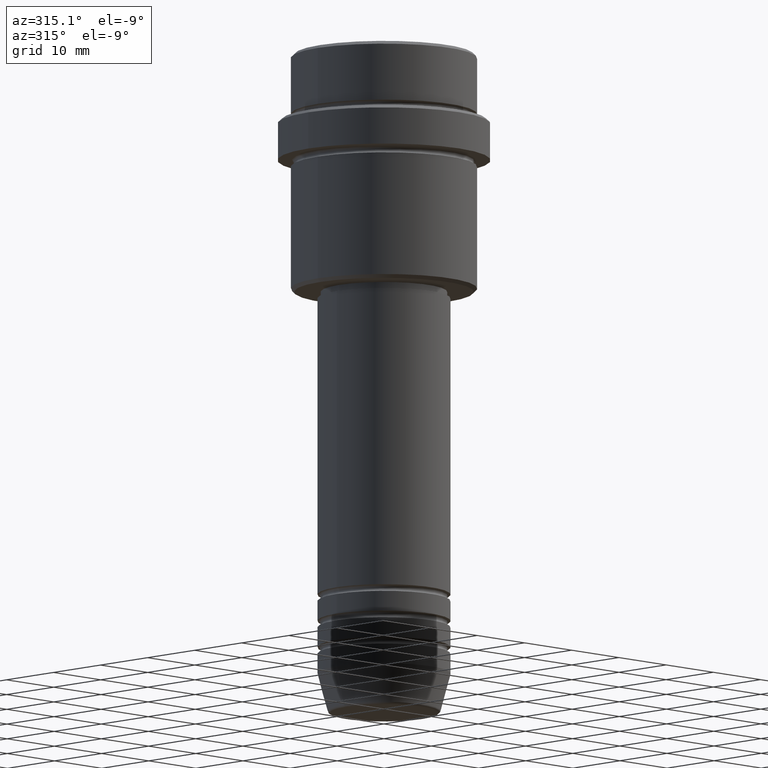
[diagram: clean part render]
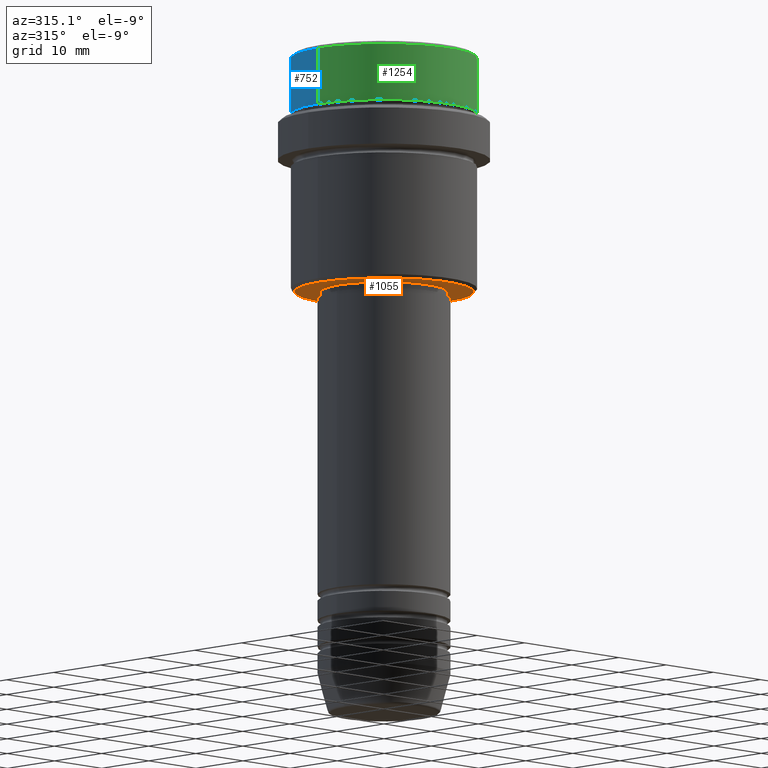
[diagram: same view with three faces highlighted in distinct colors, each labeled with its STEP entity id]
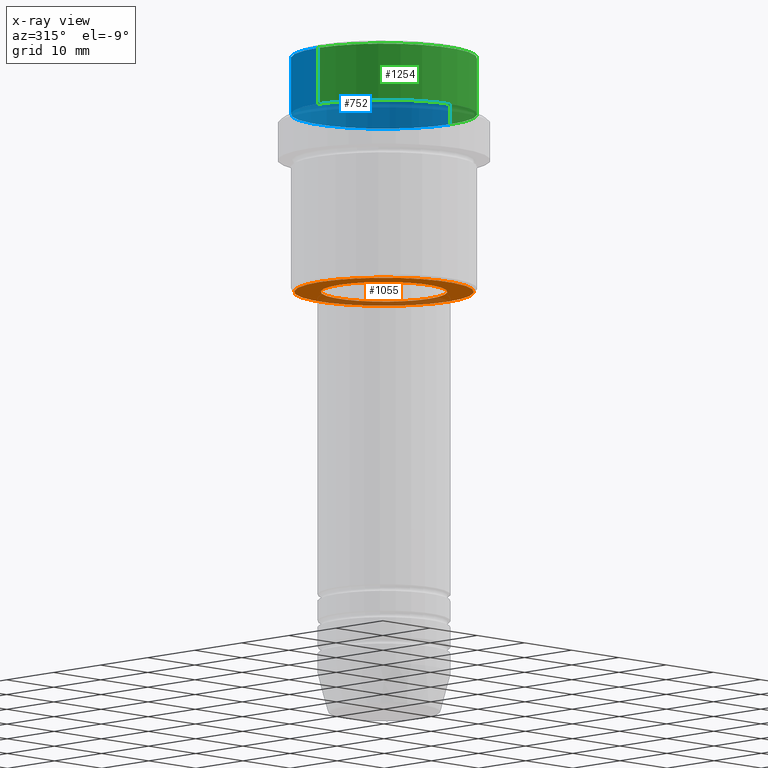
[diagram: x-ray of the same camera — body ghosted, the three highlighted faces saturated]
A machine part, auxiliary view with three faces highlighted in distinct colors.
The next image is the same camera in x-ray (body ghosted, the three faces saturated) — at least one of them is partly hidden behind the body in this view.
Their STEP definitions:

[orange] entity #1055 — the highlighted planar face has unit normal (0, 0, -1).
#13 = ORIENTED_EDGE ( 'NONE', *, *, #85, .T. ) ;
#31 = CARTESIAN_POINT ( 'NONE',  ( -9.499999999999996447, 1.163414459189985091E-15, -36.00000000000000000 ) ) ;
#34 = FACE_OUTER_BOUND ( 'NONE', #1293, .T. ) ;
#70 = CARTESIAN_POINT ( 'NONE',  ( 13.49999999999999822, 0.000000000000000000, -36.00000000000000000 ) ) ;
#85 = EDGE_CURVE ( 'NONE', #750, #1386, #1401, .T. ) ;
#196 = EDGE_LOOP ( 'NONE', ( #1410, #960 ) ) ;
#200 = VERTEX_POINT ( 'NONE', #1147 ) ;
#268 = CARTESIAN_POINT ( 'NONE',  ( 0.000000000000000000, 0.000000000000000000, -36.00000000000000000 ) ) ;
#272 = CARTESIAN_POINT ( 'NONE',  ( 0.000000000000000000, 14.00000000000000000, -36.00000000000000000 ) ) ;
#276 = DIRECTION ( 'NONE',  ( -1.000000000000000000, 0.000000000000000000, 0.000000000000000000 ) ) ;
#342 = CIRCLE ( 'NONE', #449, 9.499999999999996447 ) ;
#361 = AXIS2_PLACEMENT_3D ( 'NONE', #272, #1253, #1141 ) ;
#392 = DIRECTION ( 'NONE',  ( -0.000000000000000000, -0.000000000000000000, 1.000000000000000000 ) ) ;
#424 = ORIENTED_EDGE ( 'NONE', *, *, #992, .T. ) ;
#449 = AXIS2_PLACEMENT_3D ( 'NONE', #1356, #1033, #1041 ) ;
#526 = CIRCLE ( 'NONE', #665, 13.49999999999999822 ) ;
#534 = CARTESIAN_POINT ( 'NONE',  ( -13.49999999999999822, 1.683889348827610456E-15, -36.00000000000000000 ) ) ;
#588 = CARTESIAN_POINT ( 'NONE',  ( 0.000000000000000000, 0.000000000000000000, -36.00000000000000000 ) ) ;
#607 = PLANE ( 'NONE',  #361 ) ;
#665 = AXIS2_PLACEMENT_3D ( 'NONE', #588, #790, #276 ) ;
#750 = VERTEX_POINT ( 'NONE', #534 ) ;
#773 = AXIS2_PLACEMENT_3D ( 'NONE', #268, #898, #1132 ) ;
#790 = DIRECTION ( 'NONE',  ( 0.000000000000000000, 0.000000000000000000, -1.000000000000000000 ) ) ;
#898 = DIRECTION ( 'NONE',  ( 0.000000000000000000, 0.000000000000000000, -1.000000000000000000 ) ) ;
#960 = ORIENTED_EDGE ( 'NONE', *, *, #1011, .T. ) ;
#967 = DIRECTION ( 'NONE',  ( 1.000000000000000000, 0.000000000000000000, 0.000000000000000000 ) ) ;
#985 = CIRCLE ( 'NONE', #1082, 9.499999999999996447 ) ;
#992 = EDGE_CURVE ( 'NONE', #1386, #750, #526, .T. ) ;
#1011 = EDGE_CURVE ( 'NONE', #1137, #200, #342, .T. ) ;
#1033 = DIRECTION ( 'NONE',  ( -0.000000000000000000, -0.000000000000000000, 1.000000000000000000 ) ) ;
#1041 = DIRECTION ( 'NONE',  ( 1.000000000000000000, 0.000000000000000000, 0.000000000000000000 ) ) ;
#1055 = ADVANCED_FACE ( 'NONE', ( #34, #1248 ), #607, .T. ) ;
#1082 = AXIS2_PLACEMENT_3D ( 'NONE', #1180, #392, #967 ) ;
#1132 = DIRECTION ( 'NONE',  ( -1.000000000000000000, 0.000000000000000000, 0.000000000000000000 ) ) ;
#1137 = VERTEX_POINT ( 'NONE', #31 ) ;
#1141 = DIRECTION ( 'NONE',  ( -1.000000000000000000, 0.000000000000000000, -0.000000000000000000 ) ) ;
#1147 = CARTESIAN_POINT ( 'NONE',  ( 9.499999999999996447, 0.000000000000000000, -36.00000000000000000 ) ) ;
#1180 = CARTESIAN_POINT ( 'NONE',  ( 0.000000000000000000, 0.000000000000000000, -36.00000000000000000 ) ) ;
#1248 = FACE_BOUND ( 'NONE', #196, .T. ) ;
#1253 = DIRECTION ( 'NONE',  ( 0.000000000000000000, 0.000000000000000000, -1.000000000000000000 ) ) ;
#1293 = EDGE_LOOP ( 'NONE', ( #424, #13 ) ) ;
#1305 = EDGE_CURVE ( 'NONE', #200, #1137, #985, .T. ) ;
#1356 = CARTESIAN_POINT ( 'NONE',  ( 0.000000000000000000, 0.000000000000000000, -36.00000000000000000 ) ) ;
#1386 = VERTEX_POINT ( 'NONE', #70 ) ;
#1401 = CIRCLE ( 'NONE', #773, 13.49999999999999822 ) ;
#1410 = ORIENTED_EDGE ( 'NONE', *, *, #1305, .T. ) ;

[blue] entity #752 — the highlighted cylindrical surface (partial cylindrical patch) has radius 14 mm, axis along (-0, -0, 1).
#91 = VERTEX_POINT ( 'NONE', #471 ) ;
#126 = VERTEX_POINT ( 'NONE', #1268 ) ;
#150 = CARTESIAN_POINT ( 'NONE',  ( -13.99999999999999467, 1.714505518806294046E-15, -0.4999999999999900080 ) ) ;
#246 = DIRECTION ( 'NONE',  ( 0.000000000000000000, 0.000000000000000000, -1.000000000000000000 ) ) ;
#270 = DIRECTION ( 'NONE',  ( 1.000000000000000000, 0.000000000000000000, 0.000000000000000000 ) ) ;
#386 = LINE ( 'NONE', #808, #1190 ) ;
#388 = CARTESIAN_POINT ( 'NONE',  ( 0.000000000000000000, 0.000000000000000000, -8.999999999999998224 ) ) ;
#410 = CIRCLE ( 'NONE', #595, 13.99999999999999112 ) ;
#420 = DIRECTION ( 'NONE',  ( -0.000000000000000000, -0.000000000000000000, 1.000000000000000000 ) ) ;
#428 = CARTESIAN_POINT ( 'NONE',  ( 0.000000000000000000, 0.000000000000000000, 0.000000000000000000 ) ) ;
#471 = CARTESIAN_POINT ( 'NONE',  ( 13.99999999999999467, 0.000000000000000000, -0.4999999999999900080 ) ) ;
#517 = DIRECTION ( 'NONE',  ( -0.000000000000000000, -0.000000000000000000, 1.000000000000000000 ) ) ;
#568 = CIRCLE ( 'NONE', #1079, 13.99999999999999467 ) ;
#595 = AXIS2_PLACEMENT_3D ( 'NONE', #388, #1159, #1142 ) ;
#597 = DIRECTION ( 'NONE',  ( -0.000000000000000000, -0.000000000000000000, 1.000000000000000000 ) ) ;
#693 = EDGE_CURVE ( 'NONE', #1358, #126, #410, .T. ) ;
#729 = CYLINDRICAL_SURFACE ( 'NONE', #854, 13.99999999999999467 ) ;
#749 = ORIENTED_EDGE ( 'NONE', *, *, #1090, .T. ) ;
#752 = ADVANCED_FACE ( 'NONE', ( #972 ), #729, .T. ) ;
#788 = ORIENTED_EDGE ( 'NONE', *, *, #842, .F. ) ;
#808 = CARTESIAN_POINT ( 'NONE',  ( -13.99999999999999467, 1.714505518806294046E-15, 0.000000000000000000 ) ) ;
#842 = EDGE_CURVE ( 'NONE', #1358, #91, #1241, .T. ) ;
#854 = AXIS2_PLACEMENT_3D ( 'NONE', #428, #420, #1173 ) ;
#894 = CARTESIAN_POINT ( 'NONE',  ( 13.99999999999999467, 0.000000000000000000, 0.000000000000000000 ) ) ;
#930 = CARTESIAN_POINT ( 'NONE',  ( 13.99999999999999112, 0.000000000000000000, -8.999999999999998224 ) ) ;
#966 = VERTEX_POINT ( 'NONE', #150 ) ;
#972 = FACE_OUTER_BOUND ( 'NONE', #1246, .T. ) ;
#1046 = EDGE_CURVE ( 'NONE', #126, #966, #386, .T. ) ;
#1079 = AXIS2_PLACEMENT_3D ( 'NONE', #1151, #246, #270 ) ;
#1090 = EDGE_CURVE ( 'NONE', #966, #91, #568, .T. ) ;
#1134 = ORIENTED_EDGE ( 'NONE', *, *, #693, .T. ) ;
#1142 = DIRECTION ( 'NONE',  ( 1.000000000000000000, 0.000000000000000000, 0.000000000000000000 ) ) ;
#1151 = CARTESIAN_POINT ( 'NONE',  ( 0.000000000000000000, 0.000000000000000000, -0.4999999999999900080 ) ) ;
#1159 = DIRECTION ( 'NONE',  ( -0.000000000000000000, -0.000000000000000000, 1.000000000000000000 ) ) ;
#1173 = DIRECTION ( 'NONE',  ( 1.000000000000000000, 0.000000000000000000, 0.000000000000000000 ) ) ;
#1190 = VECTOR ( 'NONE', #597, 1000.000000000000000 ) ;
#1241 = LINE ( 'NONE', #894, #1399 ) ;
#1246 = EDGE_LOOP ( 'NONE', ( #1134, #1366, #749, #788 ) ) ;
#1268 = CARTESIAN_POINT ( 'NONE',  ( -13.99999999999999112, 1.714505518806293849E-15, -8.999999999999998224 ) ) ;
#1358 = VERTEX_POINT ( 'NONE', #930 ) ;
#1366 = ORIENTED_EDGE ( 'NONE', *, *, #1046, .T. ) ;
#1399 = VECTOR ( 'NONE', #517, 1000.000000000000000 ) ;

[green] entity #1254 — the highlighted cylindrical surface (partial cylindrical patch) has radius 14 mm, axis along (-0, -0, 1).
#3 = CIRCLE ( 'NONE', #479, 13.99999999999999112 ) ;
#91 = VERTEX_POINT ( 'NONE', #471 ) ;
#125 = CIRCLE ( 'NONE', #1102, 13.99999999999999467 ) ;
#126 = VERTEX_POINT ( 'NONE', #1268 ) ;
#150 = CARTESIAN_POINT ( 'NONE',  ( -13.99999999999999467, 1.714505518806294046E-15, -0.4999999999999900080 ) ) ;
#157 = CARTESIAN_POINT ( 'NONE',  ( 0.000000000000000000, 0.000000000000000000, 0.000000000000000000 ) ) ;
#341 = EDGE_CURVE ( 'NONE', #126, #1358, #3, .T. ) ;
#371 = CYLINDRICAL_SURFACE ( 'NONE', #452, 13.99999999999999467 ) ;
#386 = LINE ( 'NONE', #808, #1190 ) ;
#441 = CARTESIAN_POINT ( 'NONE',  ( 0.000000000000000000, 0.000000000000000000, -0.4999999999999900080 ) ) ;
#452 = AXIS2_PLACEMENT_3D ( 'NONE', #157, #566, #917 ) ;
#471 = CARTESIAN_POINT ( 'NONE',  ( 13.99999999999999467, 0.000000000000000000, -0.4999999999999900080 ) ) ;
#479 = AXIS2_PLACEMENT_3D ( 'NONE', #1206, #757, #993 ) ;
#517 = DIRECTION ( 'NONE',  ( -0.000000000000000000, -0.000000000000000000, 1.000000000000000000 ) ) ;
#566 = DIRECTION ( 'NONE',  ( -0.000000000000000000, -0.000000000000000000, 1.000000000000000000 ) ) ;
#597 = DIRECTION ( 'NONE',  ( -0.000000000000000000, -0.000000000000000000, 1.000000000000000000 ) ) ;
#680 = ORIENTED_EDGE ( 'NONE', *, *, #341, .T. ) ;
#757 = DIRECTION ( 'NONE',  ( -0.000000000000000000, -0.000000000000000000, 1.000000000000000000 ) ) ;
#787 = FACE_OUTER_BOUND ( 'NONE', #823, .T. ) ;
#808 = CARTESIAN_POINT ( 'NONE',  ( -13.99999999999999467, 1.714505518806294046E-15, 0.000000000000000000 ) ) ;
#823 = EDGE_LOOP ( 'NONE', ( #1224, #680, #946, #1112 ) ) ;
#832 = EDGE_CURVE ( 'NONE', #91, #966, #125, .T. ) ;
#842 = EDGE_CURVE ( 'NONE', #1358, #91, #1241, .T. ) ;
#879 = DIRECTION ( 'NONE',  ( 0.000000000000000000, 0.000000000000000000, -1.000000000000000000 ) ) ;
#894 = CARTESIAN_POINT ( 'NONE',  ( 13.99999999999999467, 0.000000000000000000, 0.000000000000000000 ) ) ;
#917 = DIRECTION ( 'NONE',  ( 1.000000000000000000, 0.000000000000000000, 0.000000000000000000 ) ) ;
#930 = CARTESIAN_POINT ( 'NONE',  ( 13.99999999999999112, 0.000000000000000000, -8.999999999999998224 ) ) ;
#946 = ORIENTED_EDGE ( 'NONE', *, *, #842, .T. ) ;
#966 = VERTEX_POINT ( 'NONE', #150 ) ;
#993 = DIRECTION ( 'NONE',  ( 1.000000000000000000, 0.000000000000000000, 0.000000000000000000 ) ) ;
#1046 = EDGE_CURVE ( 'NONE', #126, #966, #386, .T. ) ;
#1102 = AXIS2_PLACEMENT_3D ( 'NONE', #441, #879, #1317 ) ;
#1112 = ORIENTED_EDGE ( 'NONE', *, *, #832, .T. ) ;
#1190 = VECTOR ( 'NONE', #597, 1000.000000000000000 ) ;
#1206 = CARTESIAN_POINT ( 'NONE',  ( 0.000000000000000000, 0.000000000000000000, -8.999999999999998224 ) ) ;
#1224 = ORIENTED_EDGE ( 'NONE', *, *, #1046, .F. ) ;
#1241 = LINE ( 'NONE', #894, #1399 ) ;
#1254 = ADVANCED_FACE ( 'NONE', ( #787 ), #371, .T. ) ;
#1268 = CARTESIAN_POINT ( 'NONE',  ( -13.99999999999999112, 1.714505518806293849E-15, -8.999999999999998224 ) ) ;
#1317 = DIRECTION ( 'NONE',  ( 1.000000000000000000, 0.000000000000000000, 0.000000000000000000 ) ) ;
#1358 = VERTEX_POINT ( 'NONE', #930 ) ;
#1399 = VECTOR ( 'NONE', #517, 1000.000000000000000 ) ;